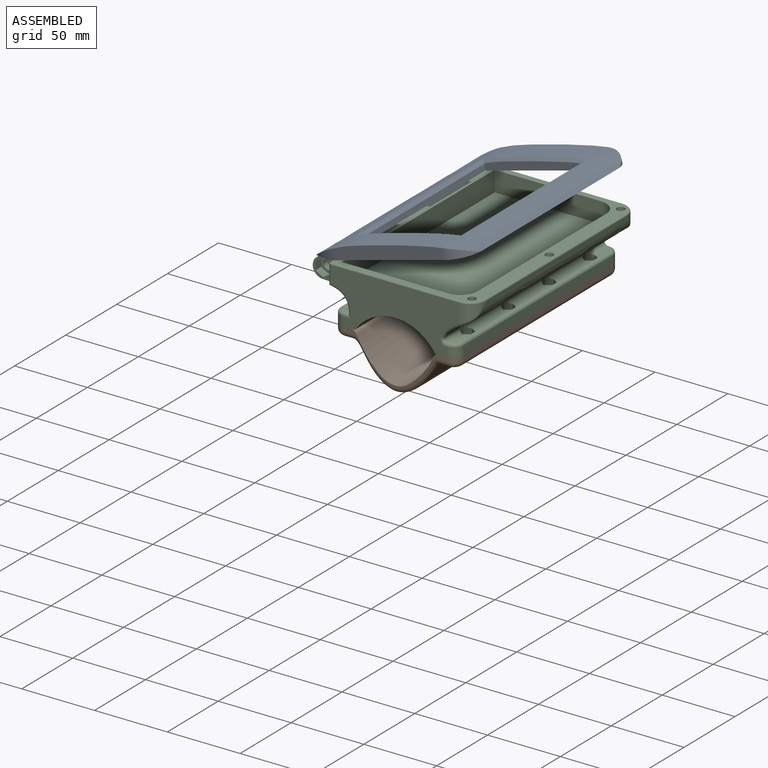
[diagram: assembled view]
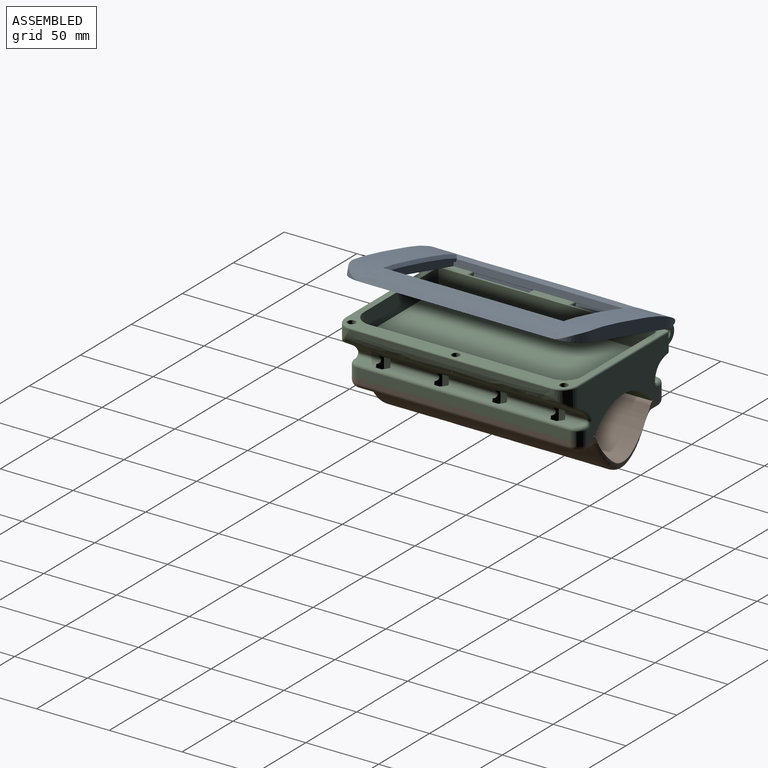
[diagram: assembled view, second angle]
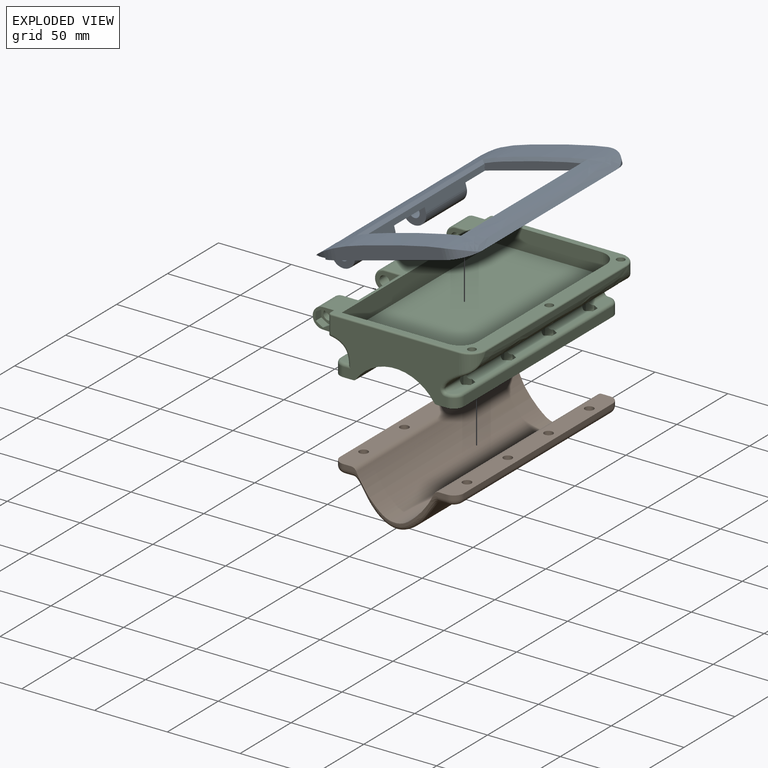
[diagram: exploded view]
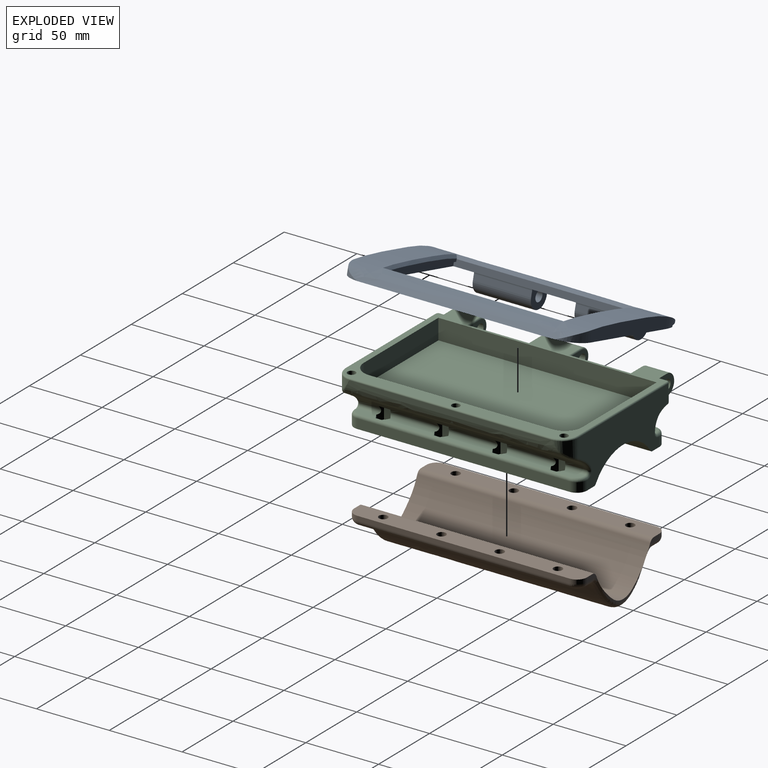
[diagram: exploded view, second angle]
ASSEMBLY  parts=3 mates=2
PART A: 48 faces, bbox 117x164x24.3 mm
  f0: plane 164x101mm, normal (0,0,-1), area 6151.9mm2, adj f1,f2,f3,f4,f18,f19,f22,f23
  f1: extruded ~164x112.87mm, area 9406.5mm2, adj f0,f2,f3,f6,f13,f16,f21,f25
  f2: plane 76.77x9.25mm, normal (0,1,0), area 660.8mm2, adj f0,f1,f42,f45
  f3: plane 76.77x9.25mm, normal (0,-1,0), area 660.8mm2, adj f0,f1,f43,f44
  f4: plane 25.76x1mm, normal (-1,0,0), area 25.8mm2, adj f0,f5,f18,f43
  f5: plane 25.76x8mm, normal (0,0,-1), area 193.1mm2, adj f4,f6,f18,f43
  f6: cylinder r=8mm len=22.04mm, axis (0,-1,0), area 83mm2, adj f1,f5,f18,f43
  f7: plane 25.76x8mm, normal (0,0,-1), area 193.1mm2, adj f24,f25,f26,f42
  f8: plane 70.57x3.15mm, normal (0,1,0), area 191.4mm2, adj f9,f11,f31,f32,f34,f35
  f9: plane 120x1.56mm, normal (1,0,0), area 187.6mm2, adj f8,f10,f31,f32
  f10: plane 70.57x3.15mm, normal (0,-1,0), area 191.4mm2, adj f9,f11,f31,f32,f33,f35
  f11: plane 120x1.46mm, normal (-1,0,0), area 174.6mm2, adj f8,f10,f31,f35
  f12: plane 40x4mm, normal (1,0,0), area 160mm2, adj f13,f22,f26,f46
  f13: cylinder r=8mm len=40mm, axis (0,1,0), area 1346.2mm2, adj f1,f12,f22,f26
  f14: plane 40x4mm, normal (1,0,0), area 160mm2, adj f16,f18,f23,f47
  f15: cylinder r=3.5mm len=40mm, axis (0,1,0), area 879.6mm2, adj f22,f26
  f16: cylinder r=8mm len=40mm, axis (0,1,0), area 1346.2mm2, adj f1,f14,f18,f23
  f17: cylinder r=3.5mm len=40mm, axis (0,1,0), area 879.6mm2, adj f18,f23
  f18: plane 19x16mm, normal (0,-1,0), area 178.2mm2, adj f0,f4,f5,f6,f14,f16,f17,f47
  f19: plane 30x1mm, normal (-1,0,0), area 30mm2, adj f0,f20,f22,f23
  f20: plane 30x8mm, normal (0,0,-1), area 240mm2, adj f19,f21,f22,f23
  f21: cylinder r=8mm len=30mm, axis (0,-1,0), area 121.3mm2, adj f1,f20,f22,f23
  f22: plane 19x16mm, normal (0,-1,0), area 178.2mm2, adj f0,f12,f13,f15,f19,f20,f21,f46
  f23: plane 19x16mm, normal (0,1,0), area 178.2mm2, adj f0,f14,f16,f17,f19,f20,f21,f47
  f24: plane 25.76x1mm, normal (-1,0,0), area 25.8mm2, adj f0,f7,f26,f42
  f25: cylinder r=8mm len=22.04mm, axis (0,-1,0), area 83mm2, adj f1,f7,f26,f42
  f26: plane 19x16mm, normal (0,1,0), area 178.2mm2, adj f0,f7,f12,f13,f15,f24,f25,f46
  f27: plane 78x4mm, normal (0,1,0), area 312mm2, adj f0,f28,f30,f31
  f28: plane 128x4mm, normal (1,0,0), area 512mm2, adj f0,f27,f29,f31
  f29: plane 78x4mm, normal (0,-1,0), area 312mm2, adj f0,f28,f30,f31
  f30: plane 128x4mm, normal (-1,0,0), area 512mm2, adj f0,f27,f29,f31
  f31: plane 128x78mm, normal (0,0,-1), area 1584mm2, adj f8,f9,f10,f11,f27,f28,f29,f30
  f32: plane 124.02x2.35mm, normal (0.65,0,0.76), area 371.2mm2, adj f1,f8,f9,f10,f33,f34
  f33: bspline ~82.14x4.27mm, area 205.5mm2, adj f1,f10,f32,f35
  f34: bspline ~82.14x4.27mm, area 205.5mm2, adj f1,f8,f32,f35
  f35: plane 124.04x2.31mm, normal (-0.66,0,0.75), area 367.2mm2, adj f1,f8,f10,f11,f33,f34
  f36: cylinder r=2.75mm len=5.5mm, axis (0,0,-1), area 60.5mm2, adj f0,f37
  f37: plane 5.5x5.5mm, normal (0,0,-1), area 23.8mm2, adj f36
  f38: cylinder r=2.75mm len=5.5mm, axis (0,0,-1), area 60.5mm2, adj f0,f39
  f39: plane 5.5x5.5mm, normal (0,0,-1), area 23.8mm2, adj f38
  f40: cylinder r=2.75mm len=5.5mm, axis (0,0,-1), area 60.5mm2, adj f0,f41
  f41: plane 5.5x5.5mm, normal (0,0,-1), area 23.8mm2, adj f40
  f42: cylinder r=30mm len=20.4mm, axis (0,0,-1), area 79.8mm2, adj f0,f1,f2,f7,f24,f25
  f43: cylinder r=30mm len=20.4mm, axis (0,0,-1), area 79.8mm2, adj f0,f1,f3,f4,f5,f6
  f44: cylinder r=16mm len=16mm, axis (0,0,-1), area 93mm2, adj f0,f1,f3
  f45: cylinder r=16mm len=16mm, axis (0,0,-1), area 93mm2, adj f0,f1,f2
  f46: cylinder r=3mm len=40mm, axis (0,1,0), area 188.5mm2, adj f0,f12,f22,f26
  f47: cylinder r=3mm len=40mm, axis (0,1,0), area 188.5mm2, adj f0,f14,f18,f23
PART B: 58 faces, bbox 85x160x32 mm
  f0: plane 27.88x8.11mm, normal (0,1,0), area 16.9mm2, adj f12,f13,f14,f44
  f1: plane 9.97x4.4mm, normal (0,1,0), area 26mm2, adj f14,f15,f41,f44,f45,f56
  f2: plane 40x9mm, normal (0,0,-1), area 269mm2, adj f18,f34,f35,f50
  f3: plane 40x9mm, normal (0,0,-1), area 269mm2, adj f18,f33,f35,f50
  f4: plane 40x9mm, normal (0,0,-1), area 269mm2, adj f18,f32,f33,f50
  f5: plane 16x9mm, normal (0,0,-1), area 96.6mm2, adj f18,f32,f50,f52,f54
  f6: plane 16x9mm, normal (0,0,-1), area 96.6mm2, adj f18,f38,f49,f51,f53
  f7: plane 40x9mm, normal (0,0,-1), area 269mm2, adj f18,f38,f39,f49
  f8: plane 40x9mm, normal (0,0,-1), area 269mm2, adj f18,f37,f39,f49
  f9: plane 40x9mm, normal (0,0,-1), area 269mm2, adj f18,f36,f37,f49
  f10: plane 27.88x8.11mm, normal (0,-1,0), area 16.9mm2, adj f12,f13,f14,f55
  f11: plane 9.97x4.4mm, normal (0,-1,0), area 26mm2, adj f14,f15,f43,f53,f55,f56
  f12: cylinder r=55mm len=160mm, axis (0,1,0), area 4530.8mm2, adj f0,f10,f13,f22,f23,f44,f55,f57
  f13: cylinder r=15mm len=160mm, axis (0,1,0), area 3032.9mm2, adj f0,f10,f12,f14
  f14: cylinder r=55mm len=160mm, axis (0,1,0), area 4530.8mm2, adj f0,f1,f10,f11,f13,f44,f55,f56
  f15: plane 160x12.35mm, normal (0,0,1), area 1842.2mm2, adj f1,f11,f16,f28,f29,f30,f31,f41
  f16: plane 146x3mm, normal (-1,0,0), area 438mm2, adj f15,f41,f43,f49
  f17: plane 16x9mm, normal (0,0,-1), area 96.6mm2, adj f18,f36,f45,f47,f49
  f18: extruded ~152x59mm, area 12249.7mm2, adj f2,f3,f4,f5,f6,f7,f8,f9
  f19: plane 16x9mm, normal (0,0,-1), area 96.6mm2, adj f18,f34,f46,f48,f50
  f20: plane 146x3mm, normal (1,0,0), area 438mm2, adj f21,f40,f42,f50
  f21: plane 160x12.35mm, normal (0,0,1), area 1842.2mm2, adj f20,f22,f23,f24,f25,f26,f27,f40
  f22: plane 9.98x4.4mm, normal (0,-1,0), area 26mm2, adj f12,f21,f42,f54,f55,f57
  f23: plane 9.97x4.4mm, normal (0,1,0), area 26mm2, adj f12,f21,f40,f44,f46,f57
  f24: cylinder r=3mm len=6mm, axis (0,0,1), area 75.4mm2, adj f21,f34
  f25: cylinder r=3mm len=6mm, axis (0,0,1), area 75.4mm2, adj f21,f32
  f26: cylinder r=3mm len=6mm, axis (0,0,1), area 75.4mm2, adj f21,f33
  f27: cylinder r=3mm len=6mm, axis (0,0,1), area 75.4mm2, adj f21,f35
  f28: cylinder r=3mm len=6mm, axis (0,0,1), area 75.4mm2, adj f15,f38
  f29: cylinder r=3mm len=6mm, axis (0,0,1), area 75.4mm2, adj f15,f36
  f30: cylinder r=3mm len=6mm, axis (0,0,1), area 75.4mm2, adj f15,f37
  f31: cylinder r=3mm len=6mm, axis (0,0,1), area 75.4mm2, adj f15,f39
  f32: cone r=3mm half-angle=45deg, axis (0,0,-1), area 120mm2, adj f4,f5,f25,f50
  f33: cone r=3mm half-angle=45deg, axis (0,0,-1), area 120mm2, adj f3,f4,f26,f50
  f34: cone r=3mm half-angle=45deg, axis (0,0,-1), area 120mm2, adj f2,f19,f24,f50
  f35: cone r=3mm half-angle=45deg, axis (0,0,-1), area 120mm2, adj f2,f3,f27,f50
  f36: cone r=3mm half-angle=45deg, axis (0,0,-1), area 120mm2, adj f9,f17,f29,f49
  f37: cone r=3mm half-angle=45deg, axis (0,0,-1), area 120mm2, adj f8,f9,f30,f49
  f38: cone r=3mm half-angle=45deg, axis (0,0,-1), area 120mm2, adj f6,f7,f28,f49
  f39: cone r=3mm half-angle=45deg, axis (0,0,-1), area 120mm2, adj f7,f8,f31,f49
  f40: cylinder r=7mm len=7mm, axis (0,0,1), area 33mm2, adj f20,f21,f23,f48
  f41: cylinder r=7mm len=7mm, axis (0,0,-1), area 33mm2, adj f1,f15,f16,f47
  f42: cylinder r=7mm len=7mm, axis (0,0,-1), area 33mm2, adj f20,f21,f22,f52
  f43: cylinder r=7mm len=7mm, axis (0,0,1), area 33mm2, adj f11,f15,f16,f51
  f44: bspline ~74.42x29.02mm, area 506.4mm2, adj f0,f1,f12,f14,f18,f23,f45,f46
  f45: cylinder r=4mm len=6mm, axis (1,0,0), area 37.7mm2, adj f1,f17,f44,f47
  f46: cylinder r=4mm len=6mm, axis (1,0,0), area 37.7mm2, adj f19,f23,f44,f48
  f47: torus R=3mm, axis (0,0,-1), area 54.7mm2, adj f17,f41,f45,f49
  f48: torus R=3mm, axis (0,0,1), area 54.7mm2, adj f19,f40,f46,f50
  f49: cylinder r=4mm len=146mm, axis (0,1,0), area 845mm2, adj f6,f7,f8,f9,f16,f17,f36,f37
  f50: cylinder r=4mm len=146mm, axis (0,1,0), area 845mm2, adj f2,f3,f4,f5,f19,f20,f32,f33
  f51: torus R=3mm, axis (0,0,-1), area 54.7mm2, adj f6,f43,f49,f53
  f52: torus R=3mm, axis (0,0,1), area 54.7mm2, adj f5,f42,f50,f54
  f53: cylinder r=4mm len=6mm, axis (-1,0,0), area 37.7mm2, adj f6,f11,f51,f55
  f54: cylinder r=4mm len=6mm, axis (-1,0,0), area 37.7mm2, adj f5,f22,f52,f55
  f55: bspline ~74.42x29.02mm, area 506.4mm2, adj f10,f11,f12,f14,f18,f22,f53,f54
  f56: cylinder r=4mm len=160mm, axis (0,1,0), area 733.9mm2, adj f1,f11,f14,f15
  f57: cylinder r=4mm len=160mm, axis (0,1,0), area 733.9mm2, adj f12,f21,f22,f23
PART C: 193 faces, bbox 119.2x162.7x38.4 mm
  f0: plane 156x8mm, normal (0,0,1), area 791.9mm2, adj f10,f72,f73,f75,f77,f78,f81,f82
  f1: plane 156x5.59mm, normal (0,0,1), area 722.4mm2, adj f39,f40,f41,f42,f43,f47,f48,f49
  f2: cylinder r=3.5mm len=14mm, axis (0,1,0), area 307.9mm2, adj f109,f125
  f3: plane 158x106.99mm, normal (0,0,1), area 2946.4mm2, adj f4,f9,f11,f26,f27,f28,f29,f30
  f4: cylinder r=7mm len=18.5mm, axis (0,1,0), area 406.8mm2, adj f3,f10,f117,f183
  f5: plane 88.01x36mm, normal (0,1,0), area 2128.3mm2, adj f22,f23,f24,f114,f132,f134,f135,f142
  f6: cylinder r=3.5mm len=17.5mm, axis (0,1,0), area 384.8mm2, adj f111,f116
  f7: extruded ~156x24.72mm, area 5231.3mm2, adj f42,f43,f45,f50,f51,f53,f58,f59
  f8: plane 88.01x36mm, normal (0,-1,0), area 2124.6mm2, adj f22,f23,f24,f113,f127,f129,f130,f137
  f9: cylinder r=7mm len=16.5mm, axis (0,1,0), area 362.9mm2, adj f3,f10,f116,f168
  f10: extruded ~156x20.5mm, area 3282.3mm2, adj f0,f4,f9,f11,f71,f72,f73,f74
  f11: cylinder r=7mm len=27mm, axis (0,1,0), area 593.8mm2, adj f3,f10,f171,f179
  f12: cylinder r=3.5mm len=29mm, axis (0,1,0), area 637.7mm2, adj f108,f112
  f13: cylinder r=2.5mm len=5mm, axis (0,0,-1), area 70.7mm2, adj f22,f106
  f14: cylinder r=2.5mm len=5mm, axis (0,0,-1), area 70.7mm2, adj f22,f97
  f15: cylinder r=2.5mm len=5mm, axis (0,0,-1), area 70.7mm2, adj f22,f88
  f16: cylinder r=2.5mm len=5mm, axis (0,0,-1), area 70.7mm2, adj f22,f79
  f17: cylinder r=2.5mm len=5mm, axis (0,0,-1), area 70.7mm2, adj f24,f70
  f18: cylinder r=2.5mm len=5mm, axis (0,0,-1), area 70.7mm2, adj f24,f62
  f19: cylinder r=2.5mm len=5mm, axis (0,0,-1), area 70.7mm2, adj f24,f54
  f20: cylinder r=2.5mm len=5mm, axis (0,0,-1), area 70.7mm2, adj f24,f46
  f21: plane 146x6.5mm, normal (-1,0,0), area 949mm2, adj f22,f140,f187,f189
  f22: plane 160x13.93mm, normal (0,0,-1), area 2129.2mm2, adj f5,f8,f13,f14,f15,f16,f21,f152
  f23: cylinder r=32.71mm len=160mm, axis (0,1,0), area 10120.6mm2, adj f5,f8,f152,f153
  f24: plane 160x13.93mm, normal (0,0,-1), area 2129.2mm2, adj f5,f8,f17,f18,f19,f20,f25,f153
  f25: plane 146x6.5mm, normal (1,0,0), area 949mm2, adj f24,f131,f185,f191
  f26: plane 73x14mm, normal (0,-1,0), area 1022mm2, adj f3,f27,f31,f32
  f27: plane 150x14mm, normal (1,0,0), area 2100mm2, adj f3,f26,f28,f32
  f28: plane 73x14mm, normal (0,1,0), area 1022mm2, adj f3,f27,f29,f32
  f29: cylinder r=12mm len=14mm, axis (0,0,1), area 263.9mm2, adj f3,f28,f30,f32
  f30: plane 126x14mm, normal (-1,0,0), area 1764mm2, adj f3,f29,f31,f32
  f31: cylinder r=12mm len=14mm, axis (0,0,1), area 263.9mm2, adj f3,f26,f30,f32
  f32: plane 150x85mm, normal (0,0,1), area 12688.2mm2, adj f26,f27,f28,f29,f30,f31
  f33: cylinder r=2.75mm len=5.5mm, axis (0,0,1), area 60.5mm2, adj f3,f34
  f34: plane 5.5x5.5mm, normal (0,0,1), area 23.8mm2, adj f33
  f35: cylinder r=2.75mm len=5.5mm, axis (0,0,1), area 60.5mm2, adj f3,f36
  f36: plane 5.5x5.5mm, normal (0,0,1), area 23.8mm2, adj f35
  f37: cylinder r=2.75mm len=5.5mm, axis (0,0,1), area 60.5mm2, adj f3,f38
  f38: plane 5.5x5.5mm, normal (0,0,1), area 23.8mm2, adj f37
  f39: plane 4.11x4mm, normal (-0.5,0.87,0), area 19mm2, adj f1,f40,f42,f46
  f40: plane 4.75x4mm, normal (-1,0,0), area 19mm2, adj f1,f39,f41,f46
  f41: plane 4.11x4mm, normal (-0.5,-0.87,0), area 19mm2, adj f1,f40,f43,f46
  f42: plane 9.86x4.97mm, normal (0.5,0.87,0), area 30.7mm2, adj f1,f7,f39,f44,f45,f46,f128
  f43: plane 9.86x4.97mm, normal (0.5,-0.87,0), area 30.7mm2, adj f1,f7,f41,f44,f45,f46,f148
  f44: plane 9x4.75mm, normal (1,0,0), area 42.8mm2, adj f42,f43,f45,f46
  f45: plane 8.19x2.98mm, normal (0,0,-1), area 19.3mm2, adj f7,f42,f43,f44
  f46: plane 9.5x8.23mm, normal (0,0,1), area 39mm2, adj f20,f39,f40,f41,f42,f43,f44
  f47: plane 4.11x4mm, normal (-0.5,0.87,0), area 19mm2, adj f1,f48,f50,f54
  f48: plane 4.75x4mm, normal (-1,0,0), area 19mm2, adj f1,f47,f49,f54
  f49: plane 4.11x4mm, normal (-0.5,-0.87,0), area 19mm2, adj f1,f48,f51,f54
  f50: plane 9.86x4.97mm, normal (0.5,0.87,0), area 30.7mm2, adj f1,f7,f47,f52,f53,f54,f148
  f51: plane 9.86x4.97mm, normal (0.5,-0.87,0), area 30.7mm2, adj f1,f7,f49,f52,f53,f54,f147
  f52: plane 9x4.75mm, normal (1,0,0), area 42.7mm2, adj f50,f51,f53,f54
  f53: plane 8.19x2.98mm, normal (0,0,-1), area 19.3mm2, adj f7,f50,f51,f52
  f54: plane 9.5x8.23mm, normal (0,0,1), area 39mm2, adj f19,f47,f48,f49,f50,f51,f52
  f55: plane 4.11x4mm, normal (-0.5,0.87,0), area 19mm2, adj f1,f56,f58,f62
  f56: plane 4.75x4mm, normal (-1,0,0), area 19mm2, adj f1,f55,f57,f62
  f57: plane 4.11x4mm, normal (-0.5,-0.87,0), area 19mm2, adj f1,f56,f59,f62
  f58: plane 9.86x4.97mm, normal (0.5,0.87,0), area 30.7mm2, adj f1,f7,f55,f60,f61,f62,f147
  f59: plane 9.86x4.97mm, normal (0.5,-0.87,0), area 30.7mm2, adj f1,f7,f57,f60,f61,f62,f146
  f60: plane 9x4.75mm, normal (1,0,0), area 42.7mm2, adj f58,f59,f61,f62
  f61: plane 8.19x2.98mm, normal (0,0,-1), area 19.3mm2, adj f7,f58,f59,f60
  f62: plane 9.5x8.23mm, normal (0,0,1), area 39mm2, adj f18,f55,f56,f57,f58,f59,f60
  f63: plane 4.11x4mm, normal (-0.5,0.87,0), area 19mm2, adj f1,f64,f66,f70
  f64: plane 4.75x4mm, normal (-1,0,0), area 19mm2, adj f1,f63,f65,f70
  f65: plane 4.11x4mm, normal (-0.5,-0.87,0), area 19mm2, adj f1,f64,f67,f70
  f66: plane 9.86x4.97mm, normal (0.5,0.87,0), area 30.7mm2, adj f1,f7,f63,f68,f69,f70,f146
  f67: plane 9.86x4.97mm, normal (0.5,-0.87,0), area 30.7mm2, adj f1,f7,f65,f68,f69,f70,f133
  f68: plane 9x4.75mm, normal (1,0,0), area 42.8mm2, adj f66,f67,f69,f70
  f69: plane 8.19x2.98mm, normal (0,0,-1), area 19.3mm2, adj f7,f66,f67,f68
  f70: plane 9.5x8.23mm, normal (0,0,1), area 39mm2, adj f17,f63,f64,f65,f66,f67,f68
  f71: plane 6.69x1.68mm, normal (0,0,-1), area 9.6mm2, adj f10,f72,f73,f74,f76
  f72: plane 9.56x4.68mm, normal (-0.5,0.87,0), area 27.6mm2, adj f0,f10,f71,f75,f76,f79,f151
  f73: plane 9.56x4.68mm, normal (-0.5,-0.87,0), area 27.6mm2, adj f0,f10,f71,f76,f77,f79,f150
  f74: cylinder r=2.5mm len=1.14mm, axis (0,0,-1), area 0mm2, adj f10,f71
  f75: plane 4.11x4mm, normal (0.5,0.87,0), area 19mm2, adj f0,f72,f78,f79
  f76: plane 9x4.75mm, normal (-1,0,0), area 42.7mm2, adj f71,f72,f73,f79
  f77: plane 4.11x4mm, normal (0.5,-0.87,0), area 19mm2, adj f0,f73,f78,f79
  f78: plane 4.75x4mm, normal (1,0,0), area 19mm2, adj f0,f75,f77,f79
  f79: plane 9.5x8.23mm, normal (0,0,1), area 39mm2, adj f16,f72,f73,f75,f76,f77,f78
  f80: plane 6.69x1.68mm, normal (0,0,-1), area 9.6mm2, adj f10,f81,f82,f83,f84
  f81: plane 9.56x4.68mm, normal (-0.5,0.87,0), area 27.6mm2, adj f0,f10,f80,f84,f87,f88,f149
  f82: plane 9.56x4.68mm, normal (-0.5,-0.87,0), area 27.6mm2, adj f0,f10,f80,f84,f85,f88,f141
  f83: cylinder r=2.5mm len=1.14mm, axis (0,0,-1), area 0mm2, adj f10,f80
  f84: plane 9x4.75mm, normal (-1,0,0), area 42.8mm2, adj f80,f81,f82,f88
  f85: plane 4.11x4mm, normal (0.5,-0.87,0), area 19mm2, adj f0,f82,f86,f88
  f86: plane 4.75x4mm, normal (1,0,0), area 19mm2, adj f0,f85,f87,f88
  f87: plane 4.11x4mm, normal (0.5,0.87,0), area 19mm2, adj f0,f81,f86,f88
  f88: plane 9.5x8.23mm, normal (0,0,1), area 39mm2, adj f15,f81,f82,f84,f85,f86,f87
  f89: plane 6.69x1.68mm, normal (0,0,-1), area 9.6mm2, adj f10,f90,f91,f92,f93
  f90: plane 9.56x4.68mm, normal (-0.5,0.87,0), area 27.6mm2, adj f0,f10,f89,f93,f96,f97,f150
  f91: plane 9.56x4.68mm, normal (-0.5,-0.87,0), area 27.6mm2, adj f0,f10,f89,f93,f94,f97,f149
  f92: cylinder r=2.5mm len=1.14mm, axis (0,0,-1), area 0mm2, adj f10,f89
  f93: plane 9x4.75mm, normal (-1,0,0), area 42.7mm2, adj f89,f90,f91,f97
  f94: plane 4.11x4mm, normal (0.5,-0.87,0), area 19mm2, adj f0,f91,f95,f97
  f95: plane 4.75x4mm, normal (1,0,0), area 19mm2, adj f0,f94,f96,f97
  f96: plane 4.11x4mm, normal (0.5,0.87,0), area 19mm2, adj f0,f90,f95,f97
  f97: plane 9.5x8.23mm, normal (0,0,1), area 39mm2, adj f14,f90,f91,f93,f94,f95,f96
  f98: plane 6.69x1.68mm, normal (0,0,-1), area 9.6mm2, adj f10,f99,f100,f101,f102
  f99: plane 9.56x4.68mm, normal (-0.5,-0.87,0), area 27.6mm2, adj f0,f10,f98,f102,f103,f106,f151
  f100: plane 9.36x4.48mm, normal (-0.5,0.87,0), area 26.4mm2, adj f0,f10,f98,f102,f105,f106
  f101: cylinder r=2.5mm len=1.14mm, axis (0,0,-1), area 0mm2, adj f10,f98
  f102: plane 9x4.75mm, normal (-1,0,0), area 42.8mm2, adj f98,f99,f100,f106
  f103: plane 4.11x4mm, normal (0.5,-0.87,0), area 19mm2, adj f0,f99,f104,f106
  f104: plane 4.75x4mm, normal (1,0,0), area 19mm2, adj f0,f103,f105,f106
  f105: plane 4.11x4mm, normal (0.5,0.87,0), area 19mm2, adj f0,f100,f104,f106
  f106: plane 9.5x8.23mm, normal (0,0,1), area 39mm2, adj f13,f99,f100,f102,f103,f104,f105
  f107: plane 41.04x9.77mm, normal (-1,0,0), area 400.6mm2, adj f108,f109,f155,f180,f181,f182
  f108: plane 15.85x12.59mm, normal (0,-1,0), area 122.8mm2, adj f12,f107,f155,f178,f179,f180
  f109: plane 15.85x12.59mm, normal (0,1,0), area 122.8mm2, adj f2,f107,f155,f182,f183,f184
  f110: plane 41.04x9.77mm, normal (-1,0,0), area 400.6mm2, adj f111,f112,f154,f170,f172,f173
  f111: plane 15.85x12.59mm, normal (0,-1,0), area 122.8mm2, adj f6,f110,f154,f167,f168,f170
  f112: plane 15.85x12.59mm, normal (0,1,0), area 122.8mm2, adj f12,f110,f154,f169,f171,f173
  f113: cylinder r=11mm len=12.82mm, axis (0,0,1), area 107mm2, adj f8,f126,f163
  f114: cylinder r=11mm len=12.82mm, axis (0,0,1), area 107mm2, adj f5,f136,f159
  f115: plane 12.51x5mm, normal (-1,0,0), area 62.5mm2, adj f116,f143,f156,f176
  f116: plane 15x14.53mm, normal (0,1,0), area 137.7mm2, adj f3,f6,f9,f10,f115,f156,f176
  f117: plane 15x14.53mm, normal (0,-1,0), area 90.3mm2, adj f3,f4,f10,f118,f119,f120,f121,f122
  f118: plane 12.51x3mm, normal (-1,0,0), area 37.5mm2, adj f117,f137,f166,f174
  f119: plane 5.5x4.98mm, normal (-0.5,0,-0.87), area 31.6mm2, adj f117,f120,f124,f125
  f120: plane 5.5x4.98mm, normal (0.5,0,-0.87), area 31.6mm2, adj f117,f119,f121,f125
  f121: plane 5.75x5.5mm, normal (1,0,0), area 31.6mm2, adj f117,f120,f122,f125
  f122: plane 5.5x4.98mm, normal (0.5,0,0.87), area 31.6mm2, adj f117,f121,f123,f125
  f123: plane 5.5x4.98mm, normal (-0.5,0,0.87), area 31.6mm2, adj f117,f122,f124,f125
  f124: plane 5.75x5.5mm, normal (-1,0,0), area 31.6mm2, adj f117,f119,f123,f125
  f125: plane 11.5x9.96mm, normal (0,-1,0), area 47.4mm2, adj f2,f119,f120,f121,f122,f123,f124
  f126: bspline ~15.99x12.58mm, area 36.8mm2, adj f7,f113,f127,f162
  f127: bspline ~14.98x13.01mm, area 51.6mm2, adj f7,f8,f126,f129
  f128: cylinder r=2mm len=14.66mm, axis (0,1,0), area 55.4mm2, adj f1,f7,f42,f129
  f129: torus R=4mm, axis (0,-1,0), area 16.8mm2, adj f8,f127,f128,f130
  f130: cylinder r=2mm len=2mm, axis (1,0,0), area 1.9mm2, adj f1,f8,f129,f192
  f131: cylinder r=2mm len=146mm, axis (0,-1,0), area 458.7mm2, adj f1,f25,f186,f192
  f132: cylinder r=2mm len=2mm, axis (-1,0,0), area 1.9mm2, adj f1,f5,f134,f186
  f133: cylinder r=2mm len=14.66mm, axis (0,1,0), area 55.4mm2, adj f1,f7,f67,f134
  f134: torus R=4mm, axis (0,-1,0), area 16.8mm2, adj f5,f132,f133,f135
  f135: bspline ~14.98x13.01mm, area 51.6mm2, adj f5,f7,f134,f136
  f136: bspline ~14.6x10.99mm, area 36.8mm2, adj f7,f114,f135,f160
  f137: cylinder r=2mm len=12.51mm, axis (0,0,-1), area 38mm2, adj f8,f118,f165,f175
  f138: bspline ~19.19x16.68mm, area 71.6mm2, adj f8,f10,f139,f175
  f139: cylinder r=2mm len=5mm, axis (1,0,0), area 12.6mm2, adj f0,f8,f138,f190
  f140: cylinder r=2mm len=146mm, axis (0,-1,0), area 458.7mm2, adj f0,f21,f188,f190
  f141: cylinder r=2mm len=14.93mm, axis (0,1,0), area 47.7mm2, adj f0,f10,f82,f144
  f142: cylinder r=2mm len=2mm, axis (-1,0,0), area 2.9mm2, adj f0,f5,f144,f188
  f143: cylinder r=2mm len=12.51mm, axis (0,0,-1), area 38mm2, adj f5,f115,f157,f177
  f144: torus R=4mm, axis (0,-1,0), area 14.2mm2, adj f5,f141,f142,f145
  f145: bspline ~16.62x14.65mm, area 61.4mm2, adj f5,f10,f144,f177
  f146: cylinder r=2mm len=33.32mm, axis (0,1,0), area 126.4mm2, adj f1,f7,f59,f66
  f147: cylinder r=2mm len=33.32mm, axis (0,1,0), area 126.4mm2, adj f1,f7,f51,f58
  f148: cylinder r=2mm len=33.32mm, axis (0,1,0), area 126.4mm2, adj f1,f7,f43,f50
  f149: cylinder r=2mm len=33.86mm, axis (0,1,0), area 108.6mm2, adj f0,f10,f81,f91
  f150: cylinder r=2mm len=33.86mm, axis (0,1,0), area 108.6mm2, adj f0,f10,f73,f90
  f151: cylinder r=2mm len=33.86mm, axis (0,1,0), area 108.6mm2, adj f0,f10,f72,f99
  f152: cylinder r=2mm len=160mm, axis (0,1,0), area 309.4mm2, adj f5,f8,f22,f23
  f153: cylinder r=2mm len=160mm, axis (0,1,0), area 309.4mm2, adj f5,f8,f23,f24
  f154: cylinder r=4mm len=43mm, axis (0,-1,0), area 260.5mm2, adj f3,f110,f111,f112,f167,f169
  f155: cylinder r=4mm len=43mm, axis (0,-1,0), area 260.5mm2, adj f3,f107,f108,f109,f178,f184
  f156: cylinder r=1mm len=5mm, axis (0,-1,0), area 7.9mm2, adj f3,f115,f116,f157
  f157: torus R=1mm, axis (0,0,1), area 4mm2, adj f3,f143,f156,f158
  f158: cylinder r=1mm len=88mm, axis (-1,0,0), area 138.2mm2, adj f3,f5,f157,f159
  f159: torus R=10mm, axis (0,0,1), area 25.3mm2, adj f3,f114,f158,f160
  f160: bspline ~1.06x1.05mm, area 0.2mm2, adj f3,f136,f159,f161
  f161: cylinder r=1mm len=138.94mm, axis (0,1,0), area 221.9mm2, adj f3,f7,f160,f162
  f162: bspline ~1.06x1.06mm, area 0.2mm2, adj f3,f126,f161,f163
  f163: torus R=10mm, axis (0,0,1), area 25.3mm2, adj f3,f113,f162,f164
  f164: cylinder r=1mm len=88mm, axis (1,0,0), area 138.2mm2, adj f3,f8,f163,f165
  f165: torus R=1mm, axis (0,0,1), area 4mm2, adj f3,f137,f164,f166
  f166: cylinder r=1mm len=3mm, axis (0,-1,0), area 4.7mm2, adj f3,f117,f118,f165
  f167: cylinder r=1mm len=12.5mm, axis (1,0,0), area 17.6mm2, adj f3,f111,f154,f168
  f168: torus R=6mm, axis (0,-1,0), area 32.8mm2, adj f9,f111,f167,f170
  f169: cylinder r=1mm len=12.5mm, axis (-1,0,0), area 17.6mm2, adj f3,f112,f154,f171
  f170: bspline ~19.81x1.93mm, area 13.8mm2, adj f10,f110,f111,f168,f172
  f171: torus R=6mm, axis (0,-1,0), area 32.8mm2, adj f11,f112,f169,f173
  f172: cylinder r=1mm len=43mm, axis (0,1,0), area 57.7mm2, adj f10,f110,f170,f173
  f173: bspline ~19.81x1.93mm, area 13.8mm2, adj f10,f110,f112,f171,f172
  f174: cylinder r=1mm len=3mm, axis (0,1,0), area 4.3mm2, adj f10,f117,f118,f175
  f175: bspline ~2.29x2mm, area 2mm2, adj f137,f138,f174
  f176: cylinder r=1mm len=5mm, axis (0,1,0), area 7.1mm2, adj f10,f115,f116,f177
  f177: bspline ~2.29x2mm, area 2mm2, adj f143,f145,f176
  f178: cylinder r=1mm len=12.5mm, axis (1,0,0), area 17.6mm2, adj f3,f108,f155,f179
  f179: torus R=6mm, axis (0,-1,0), area 32.8mm2, adj f11,f108,f178,f180
  f180: bspline ~19.81x1.93mm, area 13.8mm2, adj f10,f107,f108,f179,f181
  f181: cylinder r=1mm len=43mm, axis (0,1,0), area 57.7mm2, adj f10,f107,f180,f182
  f182: bspline ~19.81x1.93mm, area 13.8mm2, adj f10,f107,f109,f181,f183
  f183: torus R=6mm, axis (0,-1,0), area 32.8mm2, adj f4,f109,f182,f184
  f184: cylinder r=1mm len=12.5mm, axis (-1,0,0), area 17.6mm2, adj f3,f109,f155,f183
  f185: cylinder r=7mm len=7mm, axis (0,0,1), area 71.5mm2, adj f5,f24,f25,f186
  f186: torus R=5mm, axis (0,0,-1), area 31mm2, adj f1,f131,f132,f185
  f187: cylinder r=7mm len=7mm, axis (0,0,-1), area 71.5mm2, adj f5,f21,f22,f188
  f188: torus R=5mm, axis (0,0,1), area 31mm2, adj f0,f140,f142,f187
  f189: cylinder r=7mm len=7mm, axis (0,0,1), area 71.5mm2, adj f8,f21,f22,f190
  f190: torus R=5mm, axis (0,0,1), area 31mm2, adj f0,f139,f140,f189
  f191: cylinder r=7mm len=7mm, axis (0,0,-1), area 71.5mm2, adj f8,f24,f25,f192
  f192: torus R=5mm, axis (0,0,-1), area 31mm2, adj f1,f130,f131,f191
PLACE A rot(axis=(0,-1,0),15deg) t=(4.67,-1.07,47.63)mm
PLACE B t=(5.51,-3.07,3.65)mm
PLACE C t=(5.51,-3.07,3.65)mm
MATE revolute B.f28 <-> C.f13  axis (0,0,1) through (-29.99,-143.07,3.65)mm
MATE revolute C.f2 <-> A.f13  axis (0,1,0) through (-47.49,-118.07,33.65)mm
